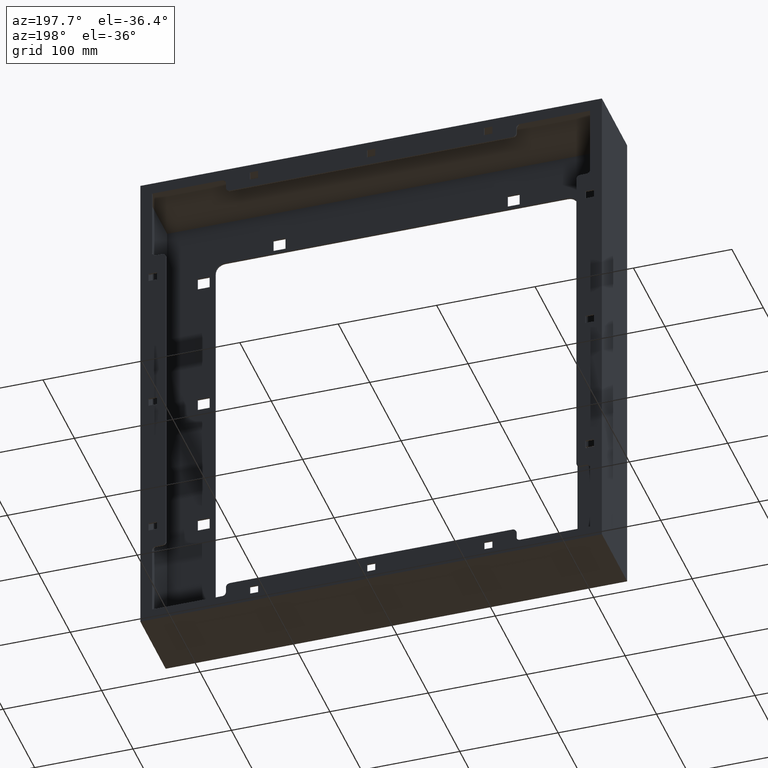
[diagram: clean part render]
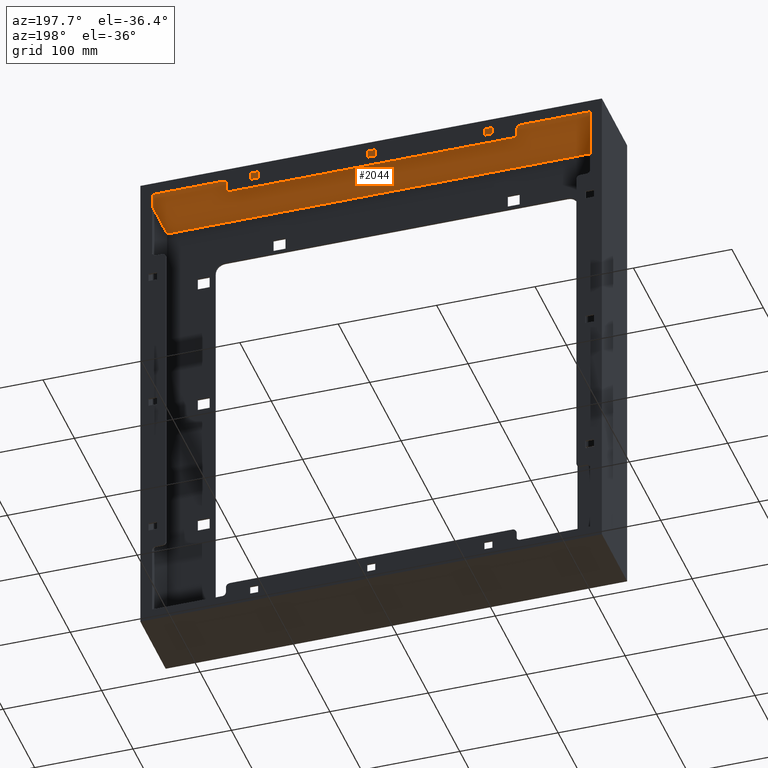
[diagram: same view with one face highlighted and labeled with its STEP entity id]
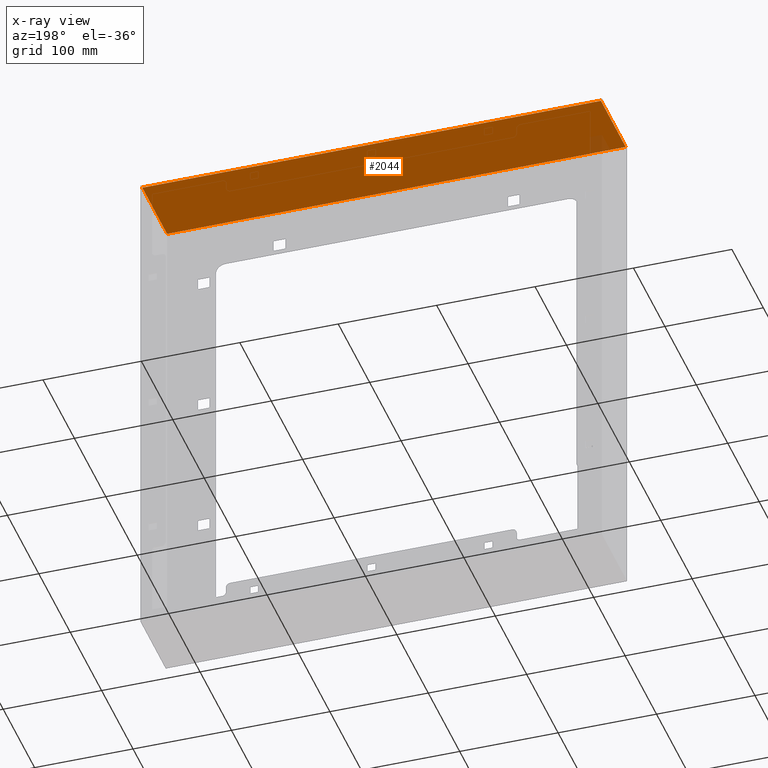
[diagram: x-ray of the same camera — body ghosted, the highlighted face saturated]
A machine part, auxiliary view. The second image highlights one B-rep face of the part: STEP entity #2044.
The next image is the same camera in x-ray: the body ghosted, the highlighted face saturated — about 1% of this face is hidden behind the body in this view.
In plain terms, the highlighted planar face has unit normal (0, 0, -1).
Its self-contained STEP definition (entity closure, byte-faithful):
#6 = DIRECTION ( 'NONE',  ( 1.000000000000000000, 0.0000000000000000000, 0.0000000000000000000 ) ) ;
#95 = CARTESIAN_POINT ( 'NONE',  ( 233.0000000000000300, 82.00000000000000000, 260.5000000000000000 ) ) ;
#96 = DIRECTION ( 'NONE',  ( 0.0000000000000000000, -1.000000000000000000, 0.0000000000000000000 ) ) ;
#137 = CARTESIAN_POINT ( 'NONE',  ( -234.5000000000000000, 1.500000000000000000, 260.4999999999999400 ) ) ;
#286 = EDGE_CURVE ( 'NONE', #1107, #1800, #4778, .T. ) ;
#340 = PLANE ( 'NONE',  #2094 ) ;
#341 = CARTESIAN_POINT ( 'NONE',  ( -234.5000000000000300, 82.00000000000000000, 260.5000000000000000 ) ) ;
#346 = DIRECTION ( 'NONE',  ( 0.0000000000000000000, 0.0000000000000000000, -1.000000000000000000 ) ) ;
#347 = DIRECTION ( 'NONE',  ( -1.000000000000000000, 0.0000000000000000000, -0.0000000000000000000 ) ) ;
#654 = CARTESIAN_POINT ( 'NONE',  ( -234.5000000000000000, 80.50000000000000000, 260.4999999999999400 ) ) ;
#655 = DIRECTION ( 'NONE',  ( 1.000000000000000000, 0.0000000000000000000, 0.0000000000000000000 ) ) ;
#681 = CARTESIAN_POINT ( 'NONE',  ( -233.0000000000000300, 82.00000000000000000, 260.5000000000000000 ) ) ;
#682 = DIRECTION ( 'NONE',  ( 0.0000000000000000000, -1.000000000000000000, 0.0000000000000000000 ) ) ;
#847 = EDGE_CURVE ( 'NONE', #1112, #1800, #4788, .T. ) ;
#1107 = VERTEX_POINT ( 'NONE', #2445 ) ;
#1112 = VERTEX_POINT ( 'NONE', #2458 ) ;
#1800 = VERTEX_POINT ( 'NONE', #2442 ) ;
#2044 = ADVANCED_FACE ( 'NONE', ( #3353 ), #340, .T. ) ;
#2094 = AXIS2_PLACEMENT_3D ( 'NONE', #341, #346, #347 ) ;
#2442 = CARTESIAN_POINT ( 'NONE',  ( 233.0000000000000300, 1.500000000000000000, 260.5000000000000000 ) ) ;
#2445 = CARTESIAN_POINT ( 'NONE',  ( -233.0000000000000300, 1.500000000000000000, 260.5000000000000000 ) ) ;
#2458 = CARTESIAN_POINT ( 'NONE',  ( 233.0000000000000300, 80.50000000000000000, 260.5000000000000000 ) ) ;
#2663 = CARTESIAN_POINT ( 'NONE',  ( -233.0000000000000300, 80.50000000000000000, 260.5000000000000000 ) ) ;
#3010 = ORIENTED_EDGE ( 'NONE', *, *, #847, .T. ) ;
#3012 = ORIENTED_EDGE ( 'NONE', *, *, #3996, .T. ) ;
#3013 = ORIENTED_EDGE ( 'NONE', *, *, #4009, .F. ) ;
#3014 = ORIENTED_EDGE ( 'NONE', *, *, #286, .F. ) ;
#3353 = FACE_OUTER_BOUND ( 'NONE', #4484, .T. ) ;
#3541 = LINE ( 'NONE', #654, #3544 ) ;
#3544 = VECTOR ( 'NONE', #655, 1000.000000000000000 ) ;
#3566 = LINE ( 'NONE', #681, #3569 ) ;
#3569 = VECTOR ( 'NONE', #682, 1000.000000000000000 ) ;
#3996 = EDGE_CURVE ( 'NONE', #4219, #1112, #3541, .T. ) ;
#4009 = EDGE_CURVE ( 'NONE', #4219, #1107, #3566, .T. ) ;
#4219 = VERTEX_POINT ( 'NONE', #2663 ) ;
#4484 = EDGE_LOOP ( 'NONE', ( #3014, #3013, #3012, #3010 ) ) ;
#4778 = LINE ( 'NONE', #137, #4787 ) ;
#4787 = VECTOR ( 'NONE', #6, 1000.000000000000000 ) ;
#4788 = LINE ( 'NONE', #95, #4792 ) ;
#4792 = VECTOR ( 'NONE', #96, 1000.000000000000000 ) ;